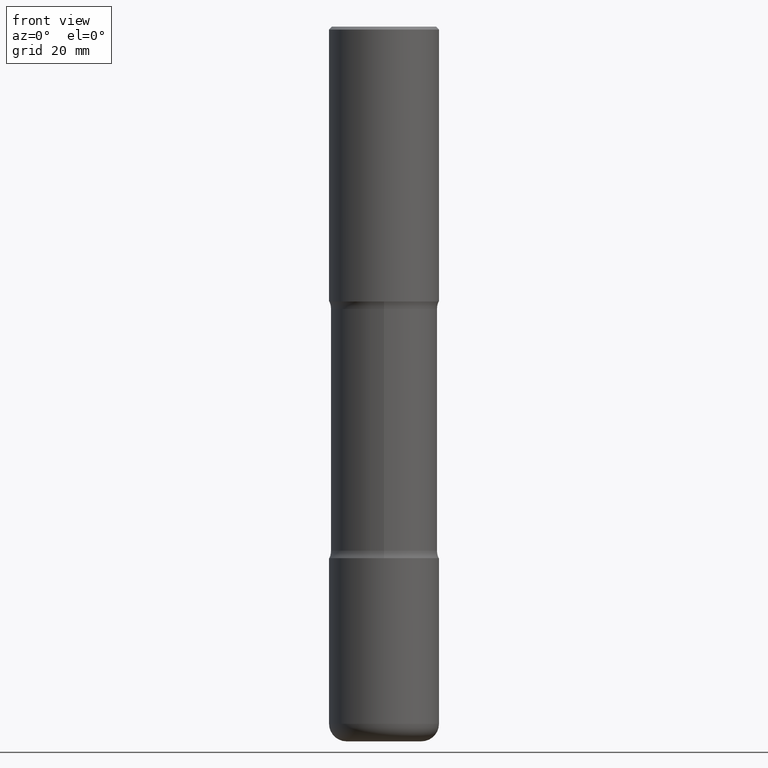
[diagram: clean part render]
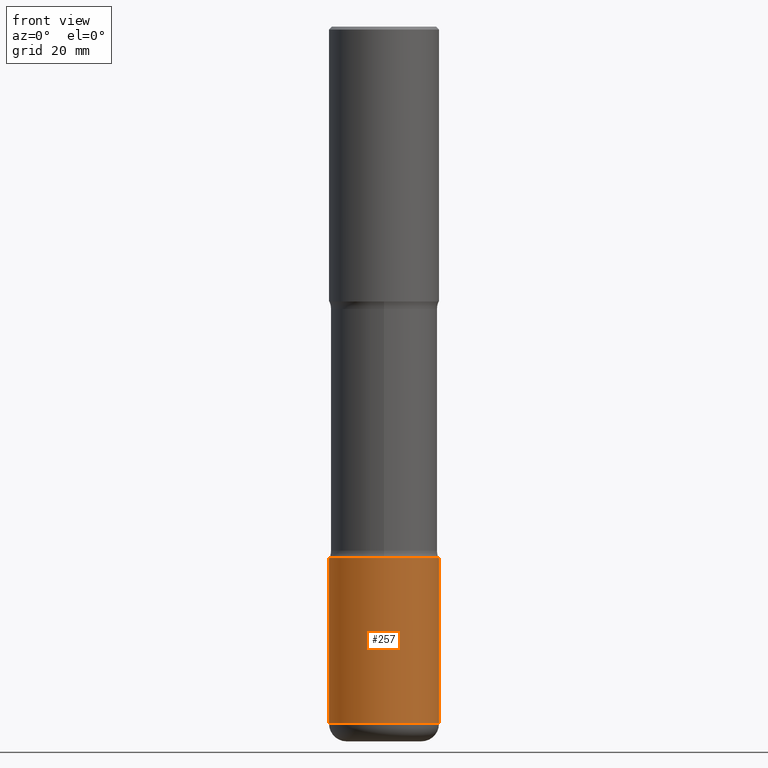
[diagram: same view with one face highlighted and labeled with its STEP entity id]
A machine part, front view. The second image highlights one B-rep face of the part: STEP entity #257.
In plain terms, the highlighted cylindrical surface (partial cylindrical patch) has radius 9.525 mm, axis along (-0, 0, 1).
Its self-contained STEP definition (entity closure, byte-faithful):
#50 = AXIS2_PLACEMENT_3D ( 'NONE', #167, #287, #253 ) ;
#61 = EDGE_LOOP ( 'NONE', ( #405, #548, #154, #66 ) ) ;
#66 = ORIENTED_EDGE ( 'NONE', *, *, #415, .F. ) ;
#98 = VERTEX_POINT ( 'NONE', #124 ) ;
#120 = LINE ( 'NONE', #290, #374 ) ;
#123 = CARTESIAN_POINT ( 'NONE',  ( 1.162820417341032685E-28, -1.660199376619916000E-14, -4.755000000000000782 ) ) ;
#124 = CARTESIAN_POINT ( 'NONE',  ( 0.3750000000000002220, -1.527523085743875418E-14, -3.625000000000000444 ) ) ;
#146 = FACE_OUTER_BOUND ( 'NONE', #61, .T. ) ;
#149 = DIRECTION ( 'NONE',  ( 1.000000000000000000, -6.982962677686265922E-15, 4.876176775795936353E-29 ) ) ;
#153 = CARTESIAN_POINT ( 'NONE',  ( 0.3750000000000009437, -1.922060477033151633E-14, -4.755000000000000782 ) ) ;
#154 = ORIENTED_EDGE ( 'NONE', *, *, #277, .T. ) ;
#167 = CARTESIAN_POINT ( 'NONE',  ( 8.864824422421121284E-29, -1.265661985330640417E-14, -3.625000000000000444 ) ) ;
#188 = CIRCLE ( 'NONE', #450, 0.3750000000000009992 ) ;
#192 = DIRECTION ( 'NONE',  ( -2.445468806185136877E-29, 3.491481338843145188E-15, 1.000000000000000000 ) ) ;
#200 = VERTEX_POINT ( 'NONE', #153 ) ;
#253 = DIRECTION ( 'NONE',  ( 1.000000000000000000, -6.982962677686263555E-15, 0.000000000000000000 ) ) ;
#257 = ADVANCED_FACE ( 'NONE', ( #146 ), #315, .T. ) ;
#277 = EDGE_CURVE ( 'NONE', #200, #98, #486, .T. ) ;
#281 = DIRECTION ( 'NONE',  ( -2.445468806185136597E-29, 3.491481338843145583E-15, 1.000000000000000000 ) ) ;
#282 = VERTEX_POINT ( 'NONE', #537 ) ;
#287 = DIRECTION ( 'NONE',  ( -2.445468806185136597E-29, 3.491481338843145583E-15, 1.000000000000000000 ) ) ;
#290 = CARTESIAN_POINT ( 'NONE',  ( -0.3750000000000006661, 2.664535259100380430E-15, -1.844600658845592961E-29 ) ) ;
#292 = DIRECTION ( 'NONE',  ( -2.445468806185136597E-29, 3.491481338843145583E-15, 1.000000000000000000 ) ) ;
#298 = CIRCLE ( 'NONE', #50, 0.3750000000000002220 ) ;
#315 = CYLINDRICAL_SURFACE ( 'NONE', #420, 0.3750000000000006661 ) ;
#317 = CARTESIAN_POINT ( 'NONE',  ( 0.3750000000000006661, -2.618611004132354355E-15, 1.828566290923479285E-29 ) ) ;
#324 = DIRECTION ( 'NONE',  ( -2.445468806185136877E-29, 3.491481338843145188E-15, 1.000000000000000000 ) ) ;
#374 = VECTOR ( 'NONE', #324, 39.37007874015748143 ) ;
#404 = CARTESIAN_POINT ( 'NONE',  ( 0.000000000000000000, 0.000000000000000000, 0.000000000000000000 ) ) ;
#405 = ORIENTED_EDGE ( 'NONE', *, *, #463, .F. ) ;
#415 = EDGE_CURVE ( 'NONE', #282, #98, #298, .T. ) ;
#420 = AXIS2_PLACEMENT_3D ( 'NONE', #404, #281, #149 ) ;
#450 = AXIS2_PLACEMENT_3D ( 'NONE', #123, #292, #460 ) ;
#453 = VERTEX_POINT ( 'NONE', #552 ) ;
#460 = DIRECTION ( 'NONE',  ( 1.000000000000000000, -6.982962677686265133E-15, 0.000000000000000000 ) ) ;
#463 = EDGE_CURVE ( 'NONE', #453, #282, #120, .T. ) ;
#486 = LINE ( 'NONE', #317, #545 ) ;
#492 = EDGE_CURVE ( 'NONE', #453, #200, #188, .T. ) ;
#537 = CARTESIAN_POINT ( 'NONE',  ( -0.3750000000000002220, -1.196477155065240166E-14, -3.625000000000000444 ) ) ;
#545 = VECTOR ( 'NONE', #192, 39.37007874015748143 ) ;
#548 = ORIENTED_EDGE ( 'NONE', *, *, #492, .T. ) ;
#552 = CARTESIAN_POINT ( 'NONE',  ( -0.3750000000000009437, -1.393745850709877800E-14, -4.755000000000000782 ) ) ;